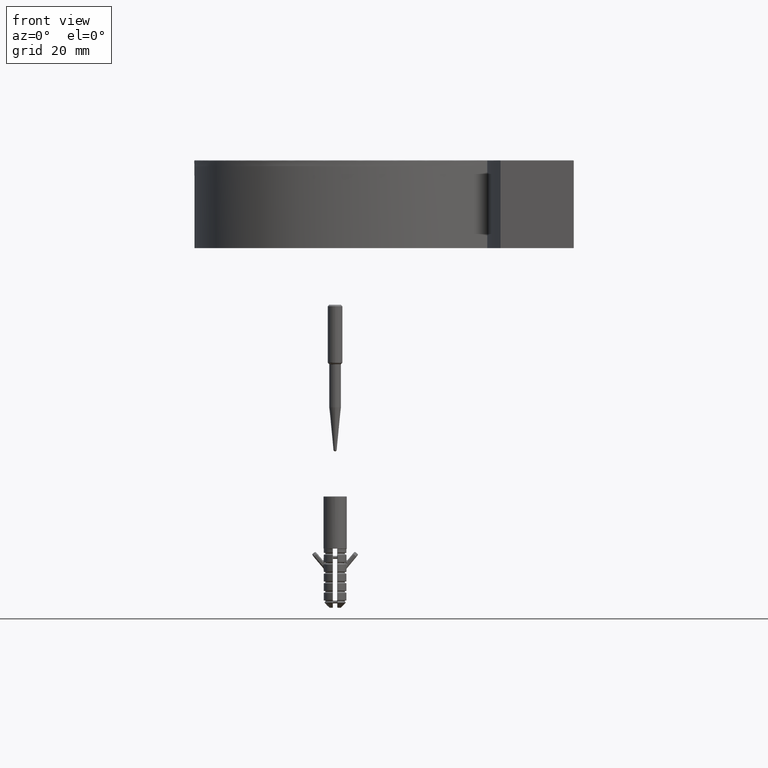
[diagram: clean part render]
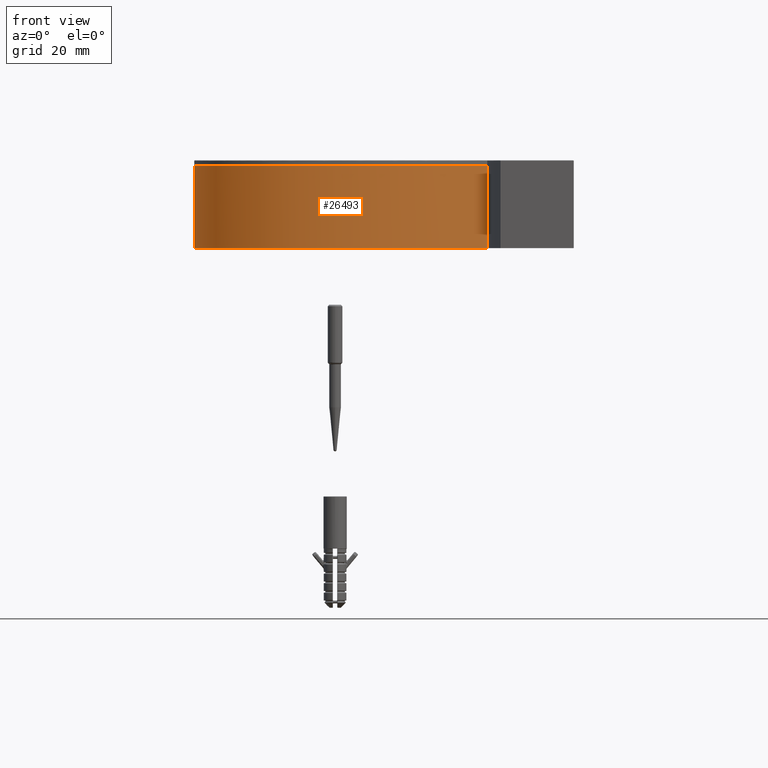
[diagram: same view with one face highlighted and labeled with its STEP entity id]
A machine part, front view. The second image highlights one B-rep face of the part: STEP entity #26493.
In plain terms, the highlighted face is a freeform B-spline surface patch.
Its self-contained STEP definition (entity closure, byte-faithful):
#10 = CARTESIAN_POINT ( 'NONE',  ( 48.59055080236382200, 93.21133839139405100, 0.0000000000000000000 ) ) ;
#110 = CARTESIAN_POINT ( 'NONE',  ( -22.03415395596045600, 2.610861387471301100, 0.0000000000000000000 ) ) ;
#215 = CARTESIAN_POINT ( 'NONE',  ( 39.11608916393060300, 90.16834965126996300, 0.0000000000000000000 ) ) ;
#402 = CARTESIAN_POINT ( 'NONE',  ( -13.35034977378541000, 82.24872361438463000, 0.0000000000000000000 ) ) ;
#506 = CARTESIAN_POINT ( 'NONE',  ( -7.469860688851882800, -0.03080879763282654700, -28.00000000000000000 ) ) ;
#617 = CARTESIAN_POINT ( 'NONE',  ( 45.02275080025557200, 14.87676251587401300, -28.00000000000000000 ) ) ;
#963 = VERTEX_POINT ( 'NONE', #15510 ) ;
#1359 = CARTESIAN_POINT ( 'NONE',  ( 1.964377091074665000, 84.65083299689540300, -28.00000000000000000 ) ) ;
#1387 = EDGE_CURVE ( 'NONE', #4737, #963, #23384, .T. ) ;
#1451 = CARTESIAN_POINT ( 'NONE',  ( 48.59055080236382900, 93.21133839139405100, -28.00000000000000000 ) ) ;
#2239 = ORIENTED_EDGE ( 'NONE', *, *, #24144, .F. ) ;
#2489 = CARTESIAN_POINT ( 'NONE',  ( 18.03542069073497700, 1.724176516586840600, 0.0000000000000000000 ) ) ;
#2680 = CARTESIAN_POINT ( 'NONE',  ( 1.964377091074665000, 84.65083299689540300, 0.0000000000000000000 ) ) ;
#2753 = CARTESIAN_POINT ( 'NONE',  ( -7.469860688851882800, -0.03080879763282654700, 0.0000000000000000000 ) ) ;
#2855 = CARTESIAN_POINT ( 'NONE',  ( -13.35034977378541000, 82.24872361438463000, -28.00000000000000000 ) ) ;
#2956 = CARTESIAN_POINT ( 'NONE',  ( 18.03542069073497700, 1.724176516586840600, -28.00000000000000000 ) ) ;
#3789 = CARTESIAN_POINT ( 'NONE',  ( -45.20005197907929800, 22.51952532253311600, -28.00000000000000000 ) ) ;
#4111 = CARTESIAN_POINT ( 'NONE',  ( 39.11608916393060300, 90.16834965126996300, -28.00000000000000000 ) ) ;
#4737 = VERTEX_POINT ( 'NONE', #26320 ) ;
#4985 = EDGE_CURVE ( 'NONE', #4737, #9473, #5793, .T. ) ;
#5059 = EDGE_CURVE ( 'NONE', #9473, #25056, #27753, .T. ) ;
#5119 = CARTESIAN_POINT ( 'NONE',  ( 48.59055080236382900, 93.21133839139405100, 0.0000000000000000000 ) ) ;
#5309 = CARTESIAN_POINT ( 'NONE',  ( -45.20005197907929800, 22.51952532253311600, -28.00000000000000000 ) ) ;
#5793 = B_SPLINE_CURVE_WITH_KNOTS ( 'NONE', 3,
 ( #17372, #13239, #13330, #17872, #8723, #29722, #15606, #15416, #3789, #8523, #25285, #29525, #18164, #25082, #1359, #17969, #4111, #20522 ),
 .UNSPECIFIED., .F., .F.,
 ( 4, 1, 1, 1, 1, 1, 1, 1, 1, 1, 1, 1, 1, 1, 1, 4 ),
 ( 0.005468891902932656600, 0.1145371524490951400, 0.1613784068055402800, 0.2094787711205806600, 0.2732907578811512000, 0.3087445299839681700, 0.3867173795356229100, 0.4437494540401275600, 0.5014462889086962500, 0.5614108672573626700, 0.6376675292993050400, 0.6951489302292025400, 0.7527001223232765400, 0.7970531646556502400, 0.8808045222089584400, 1.000000000000000000 ),
 .UNSPECIFIED. ) ;
#5946 = CARTESIAN_POINT ( 'NONE',  ( 34.33497198457605700, 6.955286791389166700, 0.0000000000000000000 ) ) ;
#6332 = ORIENTED_EDGE ( 'NONE', *, *, #5059, .F. ) ;
#6564 = CARTESIAN_POINT ( 'NONE',  ( 48.59055080236382200, 93.21133839139405100, 0.0000000000000000000 ) ) ;
#7198 = CARTESIAN_POINT ( 'NONE',  ( 34.33497198457605700, 6.955286791389166700, 0.0000000000000000000 ) ) ;
#7384 = CARTESIAN_POINT ( 'NONE',  ( -45.20005197907929800, 22.51952532253311600, 0.0000000000000000000 ) ) ;
#7480 = CARTESIAN_POINT ( 'NONE',  ( 34.33497198457605700, 6.955286791389166700, -28.00000000000000000 ) ) ;
#7691 = CARTESIAN_POINT ( 'NONE',  ( 22.41877551398409800, 87.11537640397340000, -28.00000000000000000 ) ) ;
#8213 = CARTESIAN_POINT ( 'NONE',  ( -48.70390716024384400, 36.99783830341667100, -28.00000000000000000 ) ) ;
#8523 = CARTESIAN_POINT ( 'NONE',  ( -48.70390716024384400, 36.99783830341667100, -28.00000000000000000 ) ) ;
#8723 = CARTESIAN_POINT ( 'NONE',  ( 4.907980434367742900, -0.2496469624128430100, -28.00000000000000000 ) ) ;
#9356 = CARTESIAN_POINT ( 'NONE',  ( -13.35034977378541000, 82.24872361438463000, 0.0000000000000000000 ) ) ;
#9473 = VERTEX_POINT ( 'NONE', #20611 ) ;
#9649 = CARTESIAN_POINT ( 'NONE',  ( -39.06593688587037900, 68.08608526428736200, 0.0000000000000000000 ) ) ;
#9718 = CARTESIAN_POINT ( 'NONE',  ( -48.70390716024384400, 36.99783830341667100, 0.0000000000000000000 ) ) ;
#9926 = CARTESIAN_POINT ( 'NONE',  ( -39.06593688587037900, 68.08608526428736200, 0.0000000000000000000 ) ) ;
#10030 = CARTESIAN_POINT ( 'NONE',  ( 48.59055080236382900, 93.21133839139405100, -28.00000000000000000 ) ) ;
#11883 = B_SPLINE_CURVE_WITH_KNOTS ( 'NONE', 3,
 ( #10, #215, #26010, #2680, #9356, #23725, #9649, #21355, #12033, #12128, #14380, #110, #19108, #16436, #2489, #7198, #26211, #14476 ),
 .UNSPECIFIED., .F., .F.,
 ( 4, 1, 1, 1, 1, 1, 1, 1, 1, 1, 1, 1, 1, 1, 1, 4 ),
 ( 0.005468891902932656600, 0.1246643696939742500, 0.2084157272472823600, 0.2527687695796560500, 0.3103199616737301000, 0.3678013626036276100, 0.4440580246455699800, 0.5040226029942364000, 0.5617194378628050900, 0.6187515123673097400, 0.6967243619189644700, 0.7321781340217814500, 0.7959901207823519800, 0.8440904850973923700, 0.8909317394538375200, 1.000000000000000000 ),
 .UNSPECIFIED. ) ;
#12033 = CARTESIAN_POINT ( 'NONE',  ( -48.70390716024384400, 36.99783830341667100, 0.0000000000000000000 ) ) ;
#12128 = CARTESIAN_POINT ( 'NONE',  ( -45.20005197907929800, 22.51952532253311600, 0.0000000000000000000 ) ) ;
#12203 = CARTESIAN_POINT ( 'NONE',  ( 22.41877551398409800, 87.11537640397340000, 0.0000000000000000000 ) ) ;
#12419 = CARTESIAN_POINT ( 'NONE',  ( 18.03542069073497700, 1.724176516586840600, 0.0000000000000000000 ) ) ;
#13239 = CARTESIAN_POINT ( 'NONE',  ( 45.02275080025557200, 14.87676251587401300, -28.00000000000000000 ) ) ;
#13330 = CARTESIAN_POINT ( 'NONE',  ( 34.33497198457605700, 6.955286791389166700, -28.00000000000000000 ) ) ;
#14297 = B_SPLINE_SURFACE_WITH_KNOTS ( 'NONE', 3, 1, ( 
 ( #14663, #15207 ),
 ( #617, #17017 ),
 ( #7480, #5946 ),
 ( #2956, #12419 ),
 ( #19385, #26285 ),
 ( #506, #2753 ),
 ( #17557, #24012 ),
 ( #28572, #14451 ),
 ( #5309, #7384 ),
 ( #8213, #9718 ),
 ( #23900, #24661 ),
 ( #26190, #9926 ),
 ( #21728, #21624 ),
 ( #2855, #402 ),
 ( #23797, #19280 ),
 ( #7691, #12203 ),
 ( #19184, #24119 ),
 ( #10030, #5119 ) ),
 .UNSPECIFIED., .F., .F., .F.,
 ( 4, 1, 1, 1, 1, 1, 1, 1, 1, 1, 1, 1, 1, 1, 1, 4 ),
 ( 2, 2 ),
 ( 0.005468891902932656600, 0.1145371524490951400, 0.1613784068055402800, 0.2094787711205806600, 0.2732907578811512000, 0.3087445299839681700, 0.3867173795356229100, 0.4437494540401275600, 0.5014462889086962500, 0.5614108672573626700, 0.6376675292993050400, 0.6951489302292025400, 0.7527001223232765400, 0.7970531646556502400, 0.8808045222089584400, 1.000000000000000000 ),
 ( 0.0000000000000000000, 1.000000000000000000 ),
 .UNSPECIFIED. ) ;
#14380 = CARTESIAN_POINT ( 'NONE',  ( -35.13828845264104200, 9.439073610306213200, 0.0000000000000000000 ) ) ;
#14451 = CARTESIAN_POINT ( 'NONE',  ( -35.13828845264104200, 9.439073610306213200, 0.0000000000000000000 ) ) ;
#14476 = CARTESIAN_POINT ( 'NONE',  ( 51.92896674009306000, 20.67594433399569100, 0.0000000000000000000 ) ) ;
#14663 = CARTESIAN_POINT ( 'NONE',  ( 51.92896674009306000, 20.67594433399569100, -28.00000000000000000 ) ) ;
#14869 = CARTESIAN_POINT ( 'NONE',  ( 51.92896674004946100, 20.67594433463160200, -28.00000000000000000 ) ) ;
#15207 = CARTESIAN_POINT ( 'NONE',  ( 51.92896674009306000, 20.67594433399569100, 0.0000000000000000000 ) ) ;
#15416 = CARTESIAN_POINT ( 'NONE',  ( -35.13828845264104200, 9.439073610306213200, -28.00000000000000000 ) ) ;
#15510 = CARTESIAN_POINT ( 'NONE',  ( 51.92896674009306000, 20.67594433399569100, 0.0000000000000000000 ) ) ;
#15567 = FACE_OUTER_BOUND ( 'NONE', #17330, .T. ) ;
#15606 = CARTESIAN_POINT ( 'NONE',  ( -22.03415395596045600, 2.610861387471301100, -28.00000000000000000 ) ) ;
#16436 = CARTESIAN_POINT ( 'NONE',  ( 4.907980434367742900, -0.2496469624128430100, 0.0000000000000000000 ) ) ;
#17017 = CARTESIAN_POINT ( 'NONE',  ( 45.02275080025557200, 14.87676251587401300, 0.0000000000000000000 ) ) ;
#17330 = EDGE_LOOP ( 'NONE', ( #2239, #6332, #26221, #23586 ) ) ;
#17372 = CARTESIAN_POINT ( 'NONE',  ( 51.92896674004946100, 20.67594433463160200, -28.00000000000000000 ) ) ;
#17449 = VECTOR ( 'NONE', #27650, 1000.000000000000000 ) ;
#17557 = CARTESIAN_POINT ( 'NONE',  ( -22.03415395596045600, 2.610861387471301100, -28.00000000000000000 ) ) ;
#17872 = CARTESIAN_POINT ( 'NONE',  ( 18.03542069073497700, 1.724176516586840600, -28.00000000000000000 ) ) ;
#17969 = CARTESIAN_POINT ( 'NONE',  ( 22.41877551398409800, 87.11537640397340000, -28.00000000000000000 ) ) ;
#18164 = CARTESIAN_POINT ( 'NONE',  ( -25.95807967938675600, 77.60939646260844400, -28.00000000000000000 ) ) ;
#19108 = CARTESIAN_POINT ( 'NONE',  ( -7.469860688851882800, -0.03080879763282654700, 0.0000000000000000000 ) ) ;
#19184 = CARTESIAN_POINT ( 'NONE',  ( 39.11608916393060300, 90.16834965126996300, -28.00000000000000000 ) ) ;
#19280 = CARTESIAN_POINT ( 'NONE',  ( 1.964377091074665000, 84.65083299689540300, 0.0000000000000000000 ) ) ;
#19385 = CARTESIAN_POINT ( 'NONE',  ( 4.907980434367742900, -0.2496469624128430100, -28.00000000000000000 ) ) ;
#20522 = CARTESIAN_POINT ( 'NONE',  ( 48.59055080236382900, 93.21133839139405100, -28.00000000000000000 ) ) ;
#20611 = CARTESIAN_POINT ( 'NONE',  ( 48.59055080236382900, 93.21133839139405100, -28.00000000000000000 ) ) ;
#20820 = VECTOR ( 'NONE', #21831, 1000.000000000000000 ) ;
#21355 = CARTESIAN_POINT ( 'NONE',  ( -47.45417953960543400, 53.41509195503881100, 0.0000000000000000000 ) ) ;
#21624 = CARTESIAN_POINT ( 'NONE',  ( -25.95807967938675600, 77.60939646260844400, 0.0000000000000000000 ) ) ;
#21728 = CARTESIAN_POINT ( 'NONE',  ( -25.95807967938675600, 77.60939646260844400, -28.00000000000000000 ) ) ;
#21831 = DIRECTION ( 'NONE',  ( -0.0000000000000000000, -0.0000000000000000000, 1.000000000000000000 ) ) ;
#23384 = LINE ( 'NONE', #14869, #20820 ) ;
#23586 = ORIENTED_EDGE ( 'NONE', *, *, #1387, .T. ) ;
#23725 = CARTESIAN_POINT ( 'NONE',  ( -25.95807967938675600, 77.60939646260844400, 0.0000000000000000000 ) ) ;
#23797 = CARTESIAN_POINT ( 'NONE',  ( 1.964377091074665000, 84.65083299689540300, -28.00000000000000000 ) ) ;
#23900 = CARTESIAN_POINT ( 'NONE',  ( -47.45417953960543400, 53.41509195503881100, -28.00000000000000000 ) ) ;
#24012 = CARTESIAN_POINT ( 'NONE',  ( -22.03415395596045600, 2.610861387471301100, 0.0000000000000000000 ) ) ;
#24119 = CARTESIAN_POINT ( 'NONE',  ( 39.11608916393060300, 90.16834965126996300, 0.0000000000000000000 ) ) ;
#24144 = EDGE_CURVE ( 'NONE', #25056, #963, #11883, .T. ) ;
#24661 = CARTESIAN_POINT ( 'NONE',  ( -47.45417953960543400, 53.41509195503881100, 0.0000000000000000000 ) ) ;
#25056 = VERTEX_POINT ( 'NONE', #6564 ) ;
#25082 = CARTESIAN_POINT ( 'NONE',  ( -13.35034977378541000, 82.24872361438463000, -28.00000000000000000 ) ) ;
#25285 = CARTESIAN_POINT ( 'NONE',  ( -47.45417953960543400, 53.41509195503881100, -28.00000000000000000 ) ) ;
#26010 = CARTESIAN_POINT ( 'NONE',  ( 22.41877551398409800, 87.11537640397340000, 0.0000000000000000000 ) ) ;
#26190 = CARTESIAN_POINT ( 'NONE',  ( -39.06593688587037900, 68.08608526428736200, -28.00000000000000000 ) ) ;
#26211 = CARTESIAN_POINT ( 'NONE',  ( 45.02275080025557200, 14.87676251587401300, 0.0000000000000000000 ) ) ;
#26221 = ORIENTED_EDGE ( 'NONE', *, *, #4985, .F. ) ;
#26285 = CARTESIAN_POINT ( 'NONE',  ( 4.907980434367742900, -0.2496469624128430100, 0.0000000000000000000 ) ) ;
#26320 = CARTESIAN_POINT ( 'NONE',  ( 51.92896674004946100, 20.67594433463160200, -28.00000000000000000 ) ) ;
#26493 = ADVANCED_FACE ( 'NONE', ( #15567 ), #14297, .F. ) ;
#27650 = DIRECTION ( 'NONE',  ( -0.0000000000000000000, -0.0000000000000000000, 1.000000000000000000 ) ) ;
#27753 = LINE ( 'NONE', #1451, #17449 ) ;
#28572 = CARTESIAN_POINT ( 'NONE',  ( -35.13828845264104200, 9.439073610306213200, -28.00000000000000000 ) ) ;
#29525 = CARTESIAN_POINT ( 'NONE',  ( -39.06593688587037900, 68.08608526428736200, -28.00000000000000000 ) ) ;
#29722 = CARTESIAN_POINT ( 'NONE',  ( -7.469860688851882800, -0.03080879763282654700, -28.00000000000000000 ) ) ;